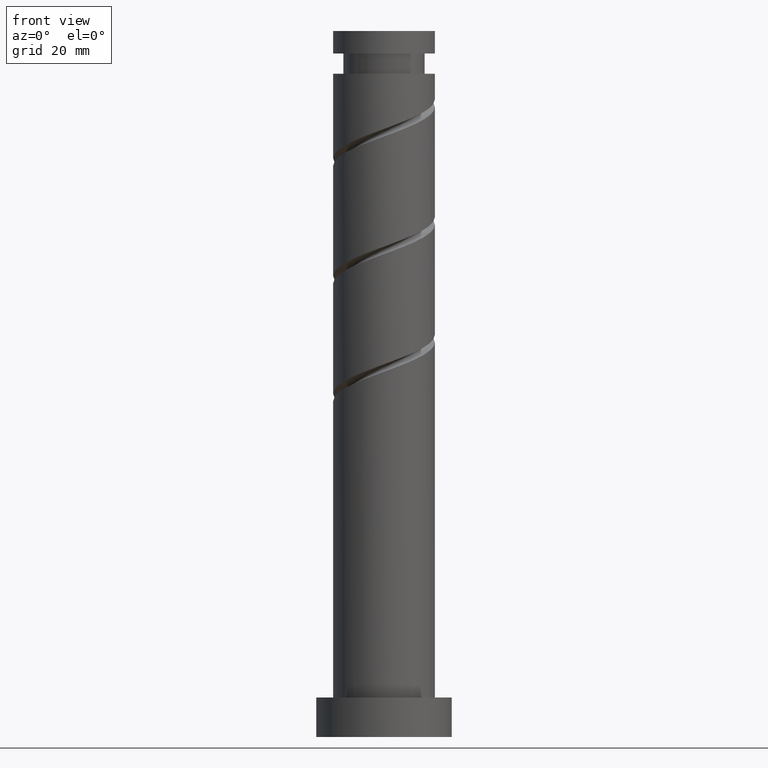
[diagram: clean part render]
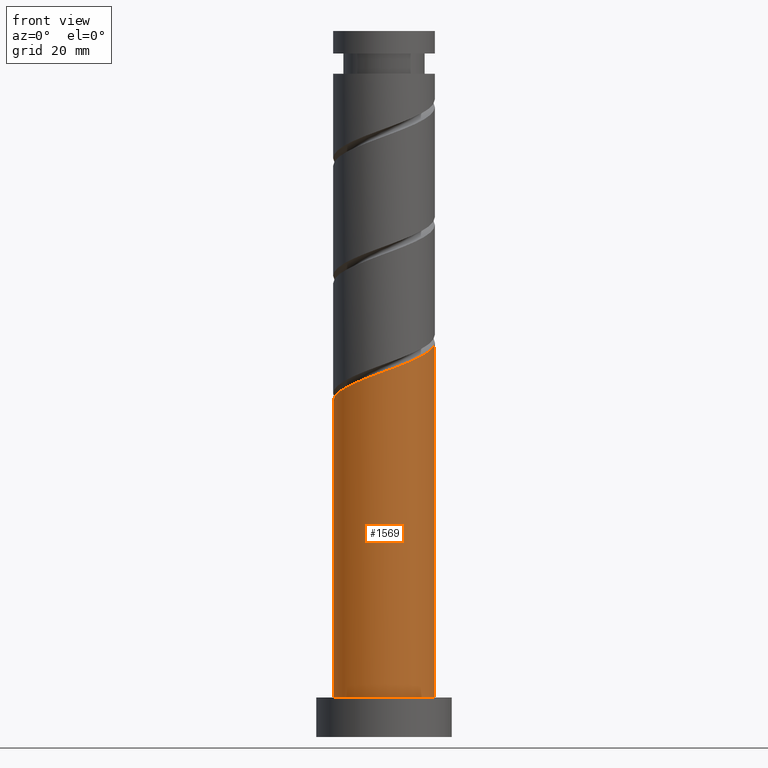
[diagram: same view with one face highlighted and labeled with its STEP entity id]
A machine part, front view. The second image highlights one B-rep face of the part: STEP entity #1569.
In plain terms, the highlighted cylindrical surface (partial cylindrical patch) has radius 9 mm, axis along (-0, -0, -1).
Its self-contained STEP definition (entity closure, byte-faithful):
#39 = CARTESIAN_POINT ( 'NONE',  ( -8.820000000000012719, -1.790977386791917203, 60.13057948457490909 ) ) ;
#57 = CARTESIAN_POINT ( 'NONE',  ( 4.428850604632757815, -7.834876024663329552, 66.38057948457492330 ) ) ;
#66 = CARTESIAN_POINT ( 'NONE',  ( 9.000000000000008882, -0.5127636370178936254, 69.69293262056403648 ) ) ;
#128 = CARTESIAN_POINT ( 'NONE',  ( 9.000000000000010658, 7.856385858399825439E-15, 69.88244370977130870 ) ) ;
#134 = DIRECTION ( 'NONE',  ( -0.000000000000000000, -0.000000000000000000, -1.000000000000000000 ) ) ;
#162 = CARTESIAN_POINT ( 'NONE',  ( -9.000000000000012434, -0.9045340337332946623, 59.80008161851247905 ) ) ;
#172 = CARTESIAN_POINT ( 'NONE',  ( 0.3940266231295048716, -9.103662951040947249, 64.81807948457489488 ) ) ;
#194 = ORIENTED_EDGE ( 'NONE', *, *, #359, .T. ) ;
#222 = VERTEX_POINT ( 'NONE', #1543 ) ;
#255 = DIRECTION ( 'NONE',  ( -0.000000000000000000, -0.000000000000000000, -1.000000000000000000 ) ) ;
#274 = DIRECTION ( 'NONE',  ( 0.000000000000000000, 0.000000000000000000, 1.000000000000000000 ) ) ;
#292 = CARTESIAN_POINT ( 'NONE',  ( -1.022209176141321674, -8.941760922783201337, 64.29724615124156628 ) ) ;
#300 = CARTESIAN_POINT ( 'NONE',  ( 1.790977386791917203, -8.820000000000012719, 65.33891281790822347 ) ) ;
#356 = CARTESIAN_POINT ( 'NONE',  ( -9.000000000000001776, 0.000000000000000000, 125.0000000000000000 ) ) ;
#359 = EDGE_CURVE ( 'NONE', #222, #525, #998, .T. ) ;
#377 = FACE_OUTER_BOUND ( 'NONE', #718, .T. ) ;
#382 = DIRECTION ( 'NONE',  ( -0.000000000000000000, -0.000000000000000000, -1.000000000000000000 ) ) ;
#459 = EDGE_CURVE ( 'NONE', #915, #1188, #1474, .T. ) ;
#525 = VERTEX_POINT ( 'NONE', #773 ) ;
#549 = CARTESIAN_POINT ( 'NONE',  ( 5.669773058811186317, -7.133415000367587133, 66.90141281790825190 ) ) ;
#556 = CARTESIAN_POINT ( 'NONE',  ( 9.000000000000010658, 7.856385858399825439E-15, 69.88244370977130870 ) ) ;
#574 = ORIENTED_EDGE ( 'NONE', *, *, #644, .F. ) ;
#627 = DIRECTION ( 'NONE',  ( -1.000000000000000000, 0.000000000000000000, 0.000000000000000000 ) ) ;
#644 = EDGE_CURVE ( 'NONE', #222, #915, #1041, .T. ) ;
#652 = DIRECTION ( 'NONE',  ( 1.000000000000000000, 0.000000000000000000, 0.000000000000000000 ) ) ;
#718 = EDGE_LOOP ( 'NONE', ( #1314, #574, #194, #784 ) ) ;
#744 = CYLINDRICAL_SURFACE ( 'NONE', #930, 9.000000000000001776 ) ;
#773 = CARTESIAN_POINT ( 'NONE',  ( -9.000000000000001776, 0.000000000000000000, 7.000000000000000000 ) ) ;
#784 = ORIENTED_EDGE ( 'NONE', *, *, #1118, .T. ) ;
#791 = CARTESIAN_POINT ( 'NONE',  ( 8.941760922783201337, -1.022209176141322118, 69.50557948457490909 ) ) ;
#913 = CARTESIAN_POINT ( 'NONE',  ( 8.779858894525451873, -2.438444975412148441, 68.98474615124158049 ) ) ;
#915 = VERTEX_POINT ( 'NONE', #128 ) ;
#930 = AXIS2_PLACEMENT_3D ( 'NONE', #1329, #134, #627 ) ;
#951 = CARTESIAN_POINT ( 'NONE',  ( 9.000000000000001776, 1.102182119232617911E-15, 7.000000000000000000 ) ) ;
#998 = LINE ( 'NONE', #356, #1558 ) ;
#1015 = CARTESIAN_POINT ( 'NONE',  ( -8.536337048959071083, -3.187928150454329757, 60.65141281790823768 ) ) ;
#1025 = CARTESIAN_POINT ( 'NONE',  ( -5.032224590115302654, -7.596621076539840089, 62.73474615124156628 ) ) ;
#1034 = CARTESIAN_POINT ( 'NONE',  ( 6.633197067675514091, -6.082819795241444893, 67.42224615124158049 ) ) ;
#1041 =( BOUNDED_CURVE ( )  B_SPLINE_CURVE ( 2, ( #1256, #162, #39, #1015, #1154, #1265, #1499, #1025, #1507, #1389, #292, #172, #300, #1146, #57, #549, #1034, #1396, #1517, #913, #791, #66, #556 ),
 .UNSPECIFIED., .F., .T. ) 
 B_SPLINE_CURVE_WITH_KNOTS ( ( 3, 2, 2, 2, 2, 2, 2, 2, 2, 2, 2, 3 ),
 ( 0.05453220231385523531, 0.06250000000000000000, 0.07499999999999995559, 0.08750000000000002220, 0.09999999999999997780, 0.1125000000000000444, 0.1250000000000000000, 0.1374999999999999556, 0.1500000000000000222, 0.1624999999999999778, 0.1750000000000000444, 0.1795322023138552492 ),
 .UNSPECIFIED. ) 
 CURVE ( )  GEOMETRIC_REPRESENTATION_ITEM ( )  RATIONAL_B_SPLINE_CURVE ( ( 0.9039174447099369569, 0.9019565955404662549, 0.9090909090909147228, 0.8978984914501307868, 0.9090909090909147228, 0.8978984914501307868, 0.9090909090909147228, 0.8978984914501307868, 0.9090909090909147228, 0.8978984914501307868, 0.9090909090909147228, 0.8978984914501307868, 0.9090909090909147228, 0.8978984914501307868, 0.9090909090909147228, 0.8978984914501307868, 0.9090909090909147228, 0.8978984914501307868, 0.9090909090909147228, 0.8978984914501307868, 0.9090909090909147228, 0.9050328050005791436, 0.9039174447099369569 ) ) 
 REPRESENTATION_ITEM ( '' )  );
#1102 = AXIS2_PLACEMENT_3D ( 'NONE', #1262, #274, #652 ) ;
#1118 = EDGE_CURVE ( 'NONE', #525, #1188, #1224, .T. ) ;
#1146 = CARTESIAN_POINT ( 'NONE',  ( 3.187928150454328868, -8.536337048959071083, 65.85974615124158049 ) ) ;
#1154 = CARTESIAN_POINT ( 'NONE',  ( -7.834876024663329552, -4.428850604632757815, 61.17224615124157339 ) ) ;
#1188 = VERTEX_POINT ( 'NONE', #951 ) ;
#1224 = CIRCLE ( 'NONE', #1102, 9.000000000000001776 ) ;
#1256 = CARTESIAN_POINT ( 'NONE',  ( -9.000000000000010658, -9.295723725587577947E-15, 59.46577704310463730 ) ) ;
#1262 = CARTESIAN_POINT ( 'NONE',  ( 0.000000000000000000, 0.000000000000000000, 7.000000000000000000 ) ) ;
#1265 = CARTESIAN_POINT ( 'NONE',  ( -7.133415000367587133, -5.669773058811186317, 61.69307948457490909 ) ) ;
#1309 = VECTOR ( 'NONE', #382, 1000.000000000000000 ) ;
#1314 = ORIENTED_EDGE ( 'NONE', *, *, #459, .F. ) ;
#1329 = CARTESIAN_POINT ( 'NONE',  ( 0.000000000000000000, 0.000000000000000000, 125.0000000000000000 ) ) ;
#1389 = CARTESIAN_POINT ( 'NONE',  ( -2.438444975412147997, -8.779858894525451873, 63.77641281790824479 ) ) ;
#1396 = CARTESIAN_POINT ( 'NONE',  ( 7.596621076539840089, -5.032224590115303542, 67.94307948457490909 ) ) ;
#1459 = CARTESIAN_POINT ( 'NONE',  ( 9.000000000000001776, 1.102182119232617911E-15, 125.0000000000000000 ) ) ;
#1474 = LINE ( 'NONE', #1459, #1309 ) ;
#1499 = CARTESIAN_POINT ( 'NONE',  ( -6.082819795241444893, -6.633197067675514091, 62.21391281790825190 ) ) ;
#1507 = CARTESIAN_POINT ( 'NONE',  ( -3.735334782763726214, -8.188239985532646870, 63.25557948457490198 ) ) ;
#1517 = CARTESIAN_POINT ( 'NONE',  ( 8.188239985532646870, -3.735334782763726214, 68.46391281790823768 ) ) ;
#1543 = CARTESIAN_POINT ( 'NONE',  ( -9.000000000000010658, -9.295723725587577947E-15, 59.46577704310463730 ) ) ;
#1558 = VECTOR ( 'NONE', #255, 1000.000000000000000 ) ;
#1569 = ADVANCED_FACE ( 'NONE', ( #377 ), #744, .T. ) ;